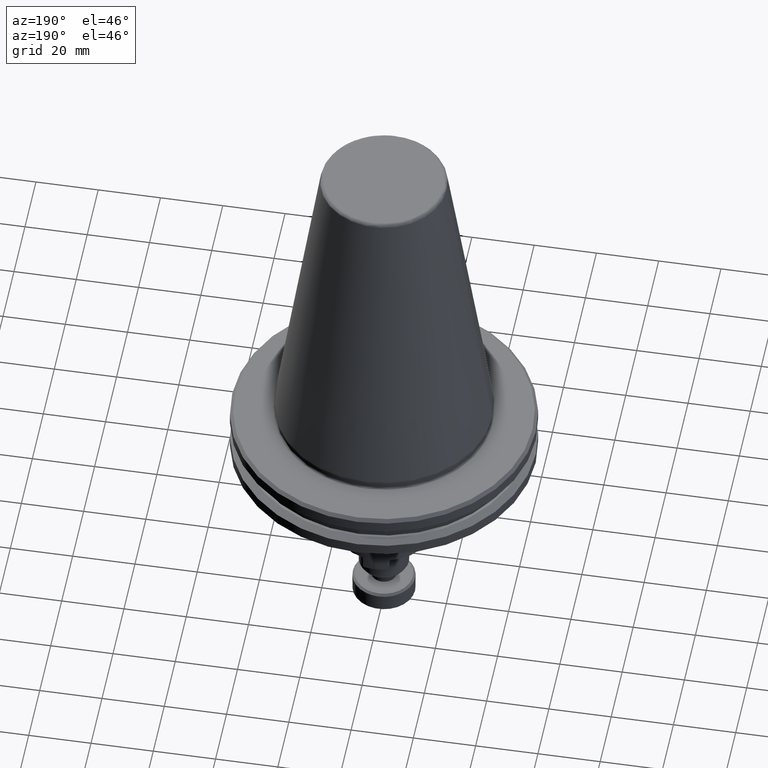
[diagram: clean part render]
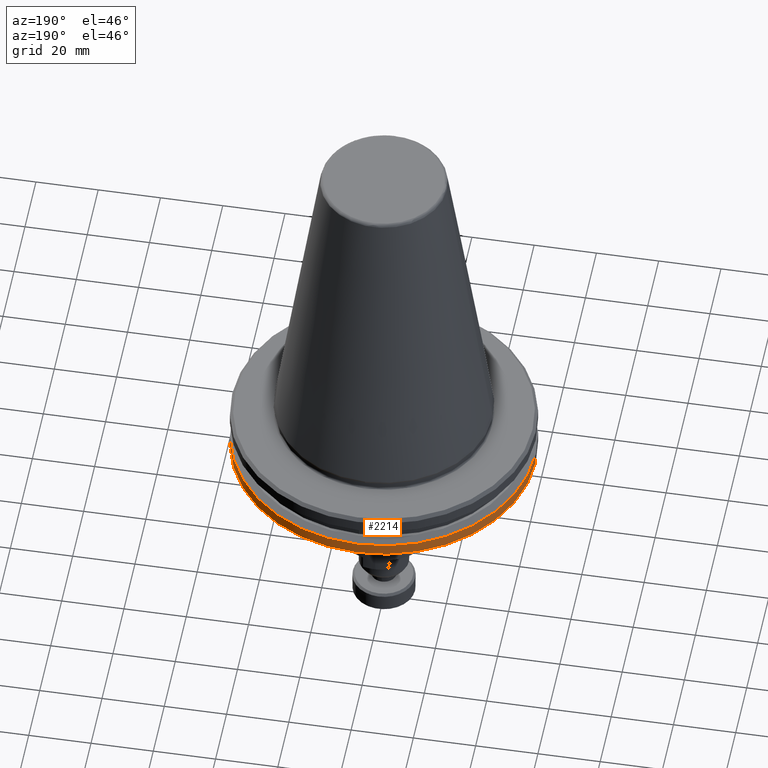
[diagram: same view with one face highlighted and labeled with its STEP entity id]
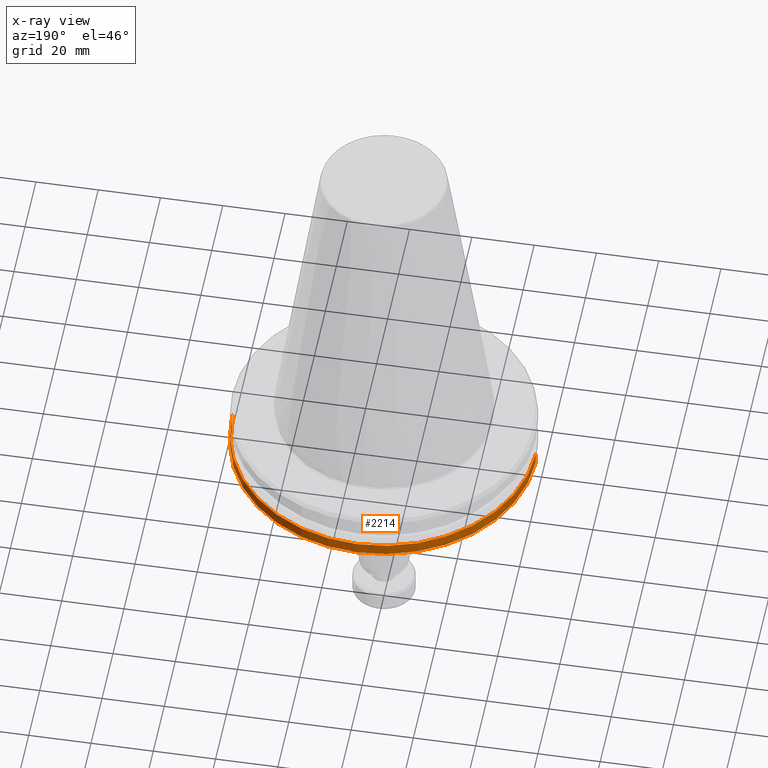
[diagram: x-ray of the same camera — body ghosted, the highlighted face saturated]
A machine part, auxiliary view. The second image highlights one B-rep face of the part: STEP entity #2214.
The next image is the same camera in x-ray: the body ghosted, the highlighted face saturated — about 0% of this face is hidden behind the body in this view.
In plain terms, the highlighted cylindrical surface (partial cylindrical patch) has radius 48.75 mm, axis along (0, -0, 1).
Its self-contained STEP definition (entity closure, byte-faithful):
#1 = CARTESIAN_POINT ( 'NONE',  ( -48.75000000000000000, 5.970153145843347100E-015, -17.93431457499999800 ) ) ;
#102 = DIRECTION ( 'NONE',  ( 1.000000000000000000, 0.0000000000000000000, 0.0000000000000000000 ) ) ;
#106 = DIRECTION ( 'NONE',  ( -0.0000000000000000000, -0.0000000000000000000, 1.000000000000000000 ) ) ;
#110 = CARTESIAN_POINT ( 'NONE',  ( 0.0000000000000000000, 0.0000000000000000000, -18.10746823273712300 ) ) ;
#145 = LINE ( 'NONE', #1302, #2028 ) ;
#158 = DIRECTION ( 'NONE',  ( 0.0000000000000000000, -0.0000000000000000000, 1.000000000000000000 ) ) ;
#176 = CARTESIAN_POINT ( 'NONE',  ( 0.0000000000000000000, 0.0000000000000000000, -17.93431457499999800 ) ) ;
#186 = DIRECTION ( 'NONE',  ( 1.000000000000000000, 0.0000000000000000000, 0.0000000000000000000 ) ) ;
#195 = CARTESIAN_POINT ( 'NONE',  ( 48.74999999938222600, 5.970153145767690700E-015, -14.34759526364332400 ) ) ;
#233 = ORIENTED_EDGE ( 'NONE', *, *, #2288, .T. ) ;
#281 = EDGE_CURVE ( 'NONE', #490, #1000, #318, .T. ) ;
#318 = CIRCLE ( 'NONE', #1729, 48.75000000000000000 ) ;
#490 = VERTEX_POINT ( 'NONE', #628 ) ;
#528 = AXIS2_PLACEMENT_3D ( 'NONE', #110, #106, #102 ) ;
#599 = AXIS2_PLACEMENT_3D ( 'NONE', #176, #158, #186 ) ;
#628 = CARTESIAN_POINT ( 'NONE',  ( -48.74999999938222600, 0.0000000000000000000, -14.34759526364332400 ) ) ;
#849 = EDGE_LOOP ( 'NONE', ( #1518, #233, #2471, #1283 ) ) ;
#1000 = VERTEX_POINT ( 'NONE', #195 ) ;
#1022 = EDGE_CURVE ( 'NONE', #1261, #1436, #2062, .T. ) ;
#1261 = VERTEX_POINT ( 'NONE', #2480 ) ;
#1283 = ORIENTED_EDGE ( 'NONE', *, *, #1481, .F. ) ;
#1302 = CARTESIAN_POINT ( 'NONE',  ( 48.75000000000000000, 0.0000000000000000000, -17.93431457499999800 ) ) ;
#1307 = DIRECTION ( 'NONE',  ( 0.0000000000000000000, -0.0000000000000000000, 1.000000000000000000 ) ) ;
#1436 = VERTEX_POINT ( 'NONE', #2147 ) ;
#1481 = EDGE_CURVE ( 'NONE', #1261, #1000, #145, .T. ) ;
#1518 = ORIENTED_EDGE ( 'NONE', *, *, #1022, .T. ) ;
#1671 = FACE_OUTER_BOUND ( 'NONE', #849, .T. ) ;
#1728 = CYLINDRICAL_SURFACE ( 'NONE', #599, 48.75000000000000000 ) ;
#1729 = AXIS2_PLACEMENT_3D ( 'NONE', #2390, #2027, #2224 ) ;
#1788 = LINE ( 'NONE', #1, #1813 ) ;
#1801 = DIRECTION ( 'NONE',  ( 0.0000000000000000000, -0.0000000000000000000, 1.000000000000000000 ) ) ;
#1813 = VECTOR ( 'NONE', #1801, 1000.000000000000000 ) ;
#2027 = DIRECTION ( 'NONE',  ( -0.0000000000000000000, 0.0000000000000000000, -1.000000000000000000 ) ) ;
#2028 = VECTOR ( 'NONE', #1307, 1000.000000000000000 ) ;
#2062 = CIRCLE ( 'NONE', #528, 48.75000000000015600 ) ;
#2147 = CARTESIAN_POINT ( 'NONE',  ( -48.75000000000015600, 5.970153145843365300E-015, -18.10746823273712300 ) ) ;
#2214 = ADVANCED_FACE ( 'NONE', ( #1671 ), #1728, .T. ) ;
#2224 = DIRECTION ( 'NONE',  ( 1.000000000000000000, 0.0000000000000000000, 0.0000000000000000000 ) ) ;
#2288 = EDGE_CURVE ( 'NONE', #1436, #490, #1788, .T. ) ;
#2390 = CARTESIAN_POINT ( 'NONE',  ( 0.0000000000000000000, 0.0000000000000000000, -14.34759526364332400 ) ) ;
#2471 = ORIENTED_EDGE ( 'NONE', *, *, #281, .T. ) ;
#2480 = CARTESIAN_POINT ( 'NONE',  ( 48.75000000000015600, 0.0000000000000000000, -18.10746823273712300 ) ) ;